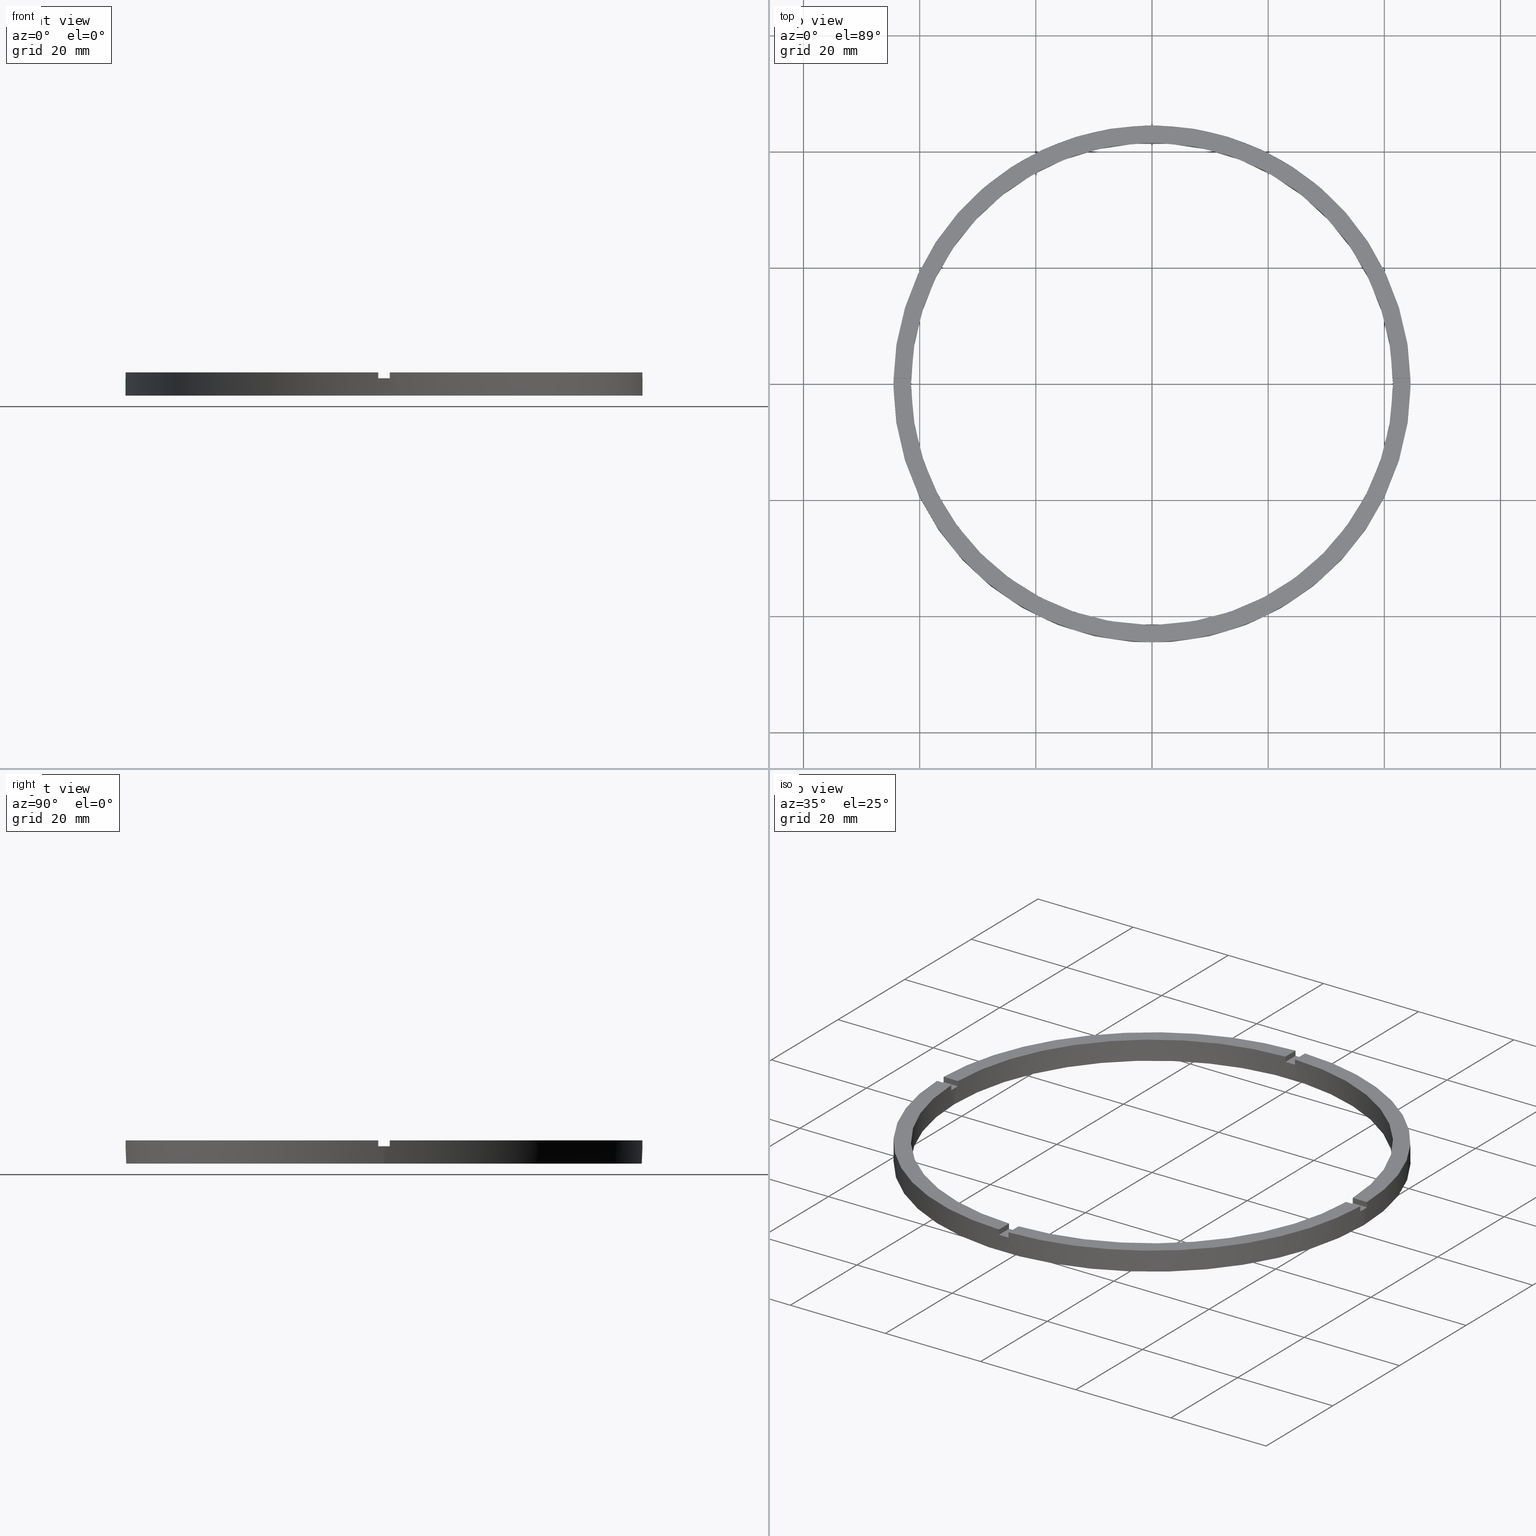
[diagram: canonical four-view strip — front | top / right | iso, engineering-drawing reading convention]
A machine part, canonical four-view strip (front | top / right | iso — engineering-drawing reading convention). The complete STEP part file that produces these views, byte-faithful:
ISO-10303-21;
HEADER;
FILE_DESCRIPTION (( 'STEP AP203' ),
    '1' );
FILE_NAME ('514183.step',
    '2024-12-26T02:45:40',
    ( 'MSI' ),
    ( '' ),
    'SwSTEP 2.0',
    'SolidWorks 2020',
    '' );
FILE_SCHEMA (( 'CONFIG_CONTROL_DESIGN' ));
ENDSEC;

DATA;
#1 = ORIENTED_EDGE ( 'NONE', *, *, #86, .F. ) ;
#2 = VERTEX_POINT ( 'NONE', #333 ) ;
#3 = AXIS2_PLACEMENT_3D ( 'NONE', #325, #637, #387 ) ;
#4 = EDGE_LOOP ( 'NONE', ( #734, #754, #232, #190, #500, #448, #221, #695, #498, #718, #200, #711 ) ) ;
#5 = DIRECTION ( 'NONE',  ( -0.000000000000000000, 0.000000000000000000, 1.000000000000000000 ) ) ;
#6 = VERTEX_POINT ( 'NONE', #376 ) ;
#7 = PERSON_AND_ORGANIZATION ( #82, #570 ) ;
#8 = VERTEX_POINT ( 'NONE', #370 ) ;
#9 = ORIENTED_EDGE ( 'NONE', *, *, #110, .T. ) ;
#10 = DIRECTION ( 'NONE',  ( 1.000000000000000000, 0.000000000000000000, 0.000000000000000000 ) ) ;
#11 = VECTOR ( 'NONE', #665, 1000.000000000000000 ) ;
#12 = DIRECTION ( 'NONE',  ( -1.000000000000000000, 0.000000000000000000, 0.000000000000000000 ) ) ;
#13 = CC_DESIGN_APPROVAL ( #143, ( #174 ) ) ;
#14 = LINE ( 'NONE', #499, #572 ) ;
#15 = AXIS2_PLACEMENT_3D ( 'NONE', #672, #164, #423 ) ;
#16 = LINE ( 'NONE', #613, #22 ) ;
#17 = EDGE_CURVE ( 'NONE', #714, #728, #713, .T. ) ;
#18 =( LENGTH_UNIT ( ) NAMED_UNIT ( * ) SI_UNIT ( .MILLI., .METRE. ) );
#19 = PLANE ( 'NONE',  #429 ) ;
#20 = CIRCLE ( 'NONE', #158, 41.50000000000000000 ) ;
#21 = PERSON_AND_ORGANIZATION ( #82, #570 ) ;
#22 = VECTOR ( 'NONE', #363, 1000.000000000000000 ) ;
#23 = DIRECTION ( 'NONE',  ( 1.000000000000000000, 0.000000000000000000, 0.000000000000000000 ) ) ;
#24 = AXIS2_PLACEMENT_3D ( 'NONE', #703, #419, #237 ) ;
#25 = DIRECTION ( 'NONE',  ( -0.000000000000000000, -0.000000000000000000, -1.000000000000000000 ) ) ;
#26 = CARTESIAN_POINT ( 'NONE',  ( 0.000000000000000000, 0.000000000000000000, 4.000000000000000000 ) ) ;
#27 = CALENDAR_DATE ( 2024, 26, 12 ) ;
#28 = CARTESIAN_POINT ( 'NONE',  ( 0.000000000000000000, 0.000000000000000000, 4.000000000000000000 ) ) ;
#29 = COORDINATED_UNIVERSAL_TIME_OFFSET ( 8, 0, .AHEAD. ) ;
#30 = LINE ( 'NONE', #383, #301 ) ;
#31 = DIRECTION ( 'NONE',  ( 0.000000000000000000, 0.000000000000000000, 1.000000000000000000 ) ) ;
#32 = FACE_BOUND ( 'NONE', #275, .T. ) ;
#33 = MECHANICAL_CONTEXT ( 'NONE', #440, 'mechanical' ) ;
#34 = CIRCLE ( 'NONE', #342, 44.50000000000000711 ) ;
#35 = CYLINDRICAL_SURFACE ( 'NONE', #648, 44.50000000000000711 ) ;
#36 = FACE_OUTER_BOUND ( 'NONE', #475, .T. ) ;
#37 = FACE_OUTER_BOUND ( 'NONE', #193, .T. ) ;
#38 = PERSON_AND_ORGANIZATION ( #82, #570 ) ;
#39 = CARTESIAN_POINT ( 'NONE',  ( 34.49999999999999289, -1.000000000000156763, 3.000000000000000000 ) ) ;
#40 = VECTOR ( 'NONE', #551, 1000.000000000000000 ) ;
#41 = CARTESIAN_POINT ( 'NONE',  ( 0.9999999999998419042, -44.48876262608346366, 4.000000000000000000 ) ) ;
#42 = VECTOR ( 'NONE', #416, 1000.000000000000000 ) ;
#43 = LINE ( 'NONE', #367, #286 ) ;
#44 = VECTOR ( 'NONE', #142, 1000.000000000000000 ) ;
#45 = LINE ( 'NONE', #67, #594 ) ;
#46 = LINE ( 'NONE', #606, #318 ) ;
#47 = AXIS2_PLACEMENT_3D ( 'NONE', #777, #518, #94 ) ;
#48 = LINE ( 'NONE', #198, #354 ) ;
#49 = CARTESIAN_POINT ( 'NONE',  ( 34.49999999999999289, 0.9999999999998432365, 3.000000000000000000 ) ) ;
#50 = CIRCLE ( 'NONE', #779, 44.50000000000000711 ) ;
#51 = CARTESIAN_POINT ( 'NONE',  ( -41.50000000000000000, 0.000000000000000000, 0.000000000000000000 ) ) ;
#52 =( GEOMETRIC_REPRESENTATION_CONTEXT ( 3 ) GLOBAL_UNCERTAINTY_ASSIGNED_CONTEXT ( ( #629 ) ) GLOBAL_UNIT_ASSIGNED_CONTEXT ( ( #18, #132, #433 ) ) REPRESENTATION_CONTEXT ( 'NONE', 'WORKASPACE' ) );
#53 = EDGE_CURVE ( 'NONE', #729, #545, #492, .T. ) ;
#54 = CIRCLE ( 'NONE', #351, 41.50000000000000000 ) ;
#55 = LINE ( 'NONE', #541, #324 ) ;
#56 = CARTESIAN_POINT ( 'NONE',  ( 0.000000000000000000, 0.000000000000000000, 3.000000000000000000 ) ) ;
#57 = LINE ( 'NONE', #501, #584 ) ;
#58 = CARTESIAN_POINT ( 'NONE',  ( -1.000000000000025979, 41.48795005781799716, 4.000000000000000000 ) ) ;
#59 = CARTESIAN_POINT ( 'NONE',  ( 41.48795005781800427, 0.9999999999998436806, 3.000000000000000000 ) ) ;
#60 = CIRCLE ( 'NONE', #562, 41.50000000000000000 ) ;
#61 = FACE_OUTER_BOUND ( 'NONE', #517, .T. ) ;
#62 = CC_DESIGN_APPROVAL ( #350, ( #401 ) ) ;
#63 = VECTOR ( 'NONE', #762, 1000.000000000000000 ) ;
#64 = DIRECTION ( 'NONE',  ( 1.000000000000000000, 1.951563910473907735E-16, 0.000000000000000000 ) ) ;
#65 = CARTESIAN_POINT ( 'NONE',  ( 41.48795005781799006, -1.000000000000156319, 3.000000000000000000 ) ) ;
#66 = EDGE_CURVE ( 'NONE', #484, #265, #706, .T. ) ;
#67 = CARTESIAN_POINT ( 'NONE',  ( 41.48795005781800427, 0.9999999999998436806, 4.000000000000000000 ) ) ;
#68 = LINE ( 'NONE', #522, #331 ) ;
#69 = CIRCLE ( 'NONE', #668, 41.50000000000000000 ) ;
#70 = VECTOR ( 'NONE', #267, 1000.000000000000000 ) ;
#71 = CIRCLE ( 'NONE', #759, 41.50000000000000000 ) ;
#72 = LINE ( 'NONE', #125, #603 ) ;
#73 = AXIS2_PLACEMENT_3D ( 'NONE', #662, #211, #686 ) ;
#74 = CARTESIAN_POINT ( 'NONE',  ( 0.000000000000000000, 0.000000000000000000, 4.000000000000000000 ) ) ;
#75 = ADVANCED_FACE ( 'NONE', ( #453 ), #708, .F. ) ;
#76 = PLANE ( 'NONE',  #657 ) ;
#77 = CARTESIAN_POINT ( 'NONE',  ( 44.50000000000000711, 5.449678256205721981E-15, 0.000000000000000000 ) ) ;
#78 = EDGE_CURVE ( 'NONE', #445, #773, #334, .T. ) ;
#79 = PLANE ( 'NONE',  #407 ) ;
#80 = LINE ( 'NONE', #109, #90 ) ;
#81 = ADVANCED_FACE ( 'NONE', ( #601 ), #134, .T. ) ;
#82 = PERSON ( 'δָ��', 'δָ��', 'δָ��', ('δָ��'), ('δָ��'), ('δָ��') ) ;
#83 = CARTESIAN_POINT ( 'NONE',  ( -44.50000000000000711, 0.000000000000000000, 4.000000000000000000 ) ) ;
#84 = VECTOR ( 'NONE', #297, 1000.000000000000000 ) ;
#85 = PERSON_AND_ORGANIZATION_ROLE ( 'creator' ) ;
#86 = EDGE_CURVE ( 'NONE', #778, #2, #69, .T. ) ;
#87 = CARTESIAN_POINT ( 'NONE',  ( -44.48876262608345655, 0.9999999999999703570, 3.000000000000000000 ) ) ;
#88 = DIRECTION ( 'NONE',  ( -0.000000000000000000, -0.000000000000000000, -1.000000000000000000 ) ) ;
#89 = FACE_OUTER_BOUND ( 'NONE', #698, .T. ) ;
#90 = VECTOR ( 'NONE', #163, 1000.000000000000000 ) ;
#91 = PLANE ( 'NONE',  #744 ) ;
#92 = PERSON_AND_ORGANIZATION_ROLE ( 'classification_officer' ) ;
#93 = DIRECTION ( 'NONE',  ( 1.000000000000000000, -0.000000000000000000, 0.000000000000000000 ) ) ;
#94 = DIRECTION ( 'NONE',  ( 1.000000000000000000, 0.000000000000000000, -0.000000000000000000 ) ) ;
#95 = DIRECTION ( 'NONE',  ( 6.505213034913025371E-17, -1.000000000000000000, 0.000000000000000000 ) ) ;
#96 = CIRCLE ( 'NONE', #677, 44.50000000000000711 ) ;
#97 = AXIS2_PLACEMENT_3D ( 'NONE', #782, #608, #64 ) ;
#98 = DIRECTION ( 'NONE',  ( -1.000000000000000000, -6.505213034913025371E-17, -0.000000000000000000 ) ) ;
#99 = LINE ( 'NONE', #215, #122 ) ;
#100 = EDGE_CURVE ( 'NONE', #223, #773, #335, .T. ) ;
#101 = CARTESIAN_POINT ( 'NONE',  ( 0.000000000000000000, 0.000000000000000000, 4.000000000000000000 ) ) ;
#102 = DIRECTION ( 'NONE',  ( 0.000000000000000000, 0.000000000000000000, 1.000000000000000000 ) ) ;
#103 = DIRECTION ( 'NONE',  ( 0.000000000000000000, 0.000000000000000000, 1.000000000000000000 ) ) ;
#104 = EDGE_CURVE ( 'NONE', #458, #230, #72, .T. ) ;
#105 = AXIS2_PLACEMENT_3D ( 'NONE', #740, #432, #12 ) ;
#106 = DIRECTION ( 'NONE',  ( 0.000000000000000000, 0.000000000000000000, 1.000000000000000000 ) ) ;
#107 = EDGE_CURVE ( 'NONE', #728, #223, #339, .T. ) ;
#108 = DIRECTION ( 'NONE',  ( 0.000000000000000000, 0.000000000000000000, 1.000000000000000000 ) ) ;
#109 = CARTESIAN_POINT ( 'NONE',  ( 44.48876262608346366, 0.9999999999998439026, 4.000000000000000000 ) ) ;
#110 = EDGE_CURVE ( 'NONE', #743, #279, #598, .T. ) ;
#111 = CALENDAR_DATE ( 2024, 26, 12 ) ;
#112 = LOCAL_TIME ( 10, 45, 40.00000000000000000, #394 ) ;
#113 = DATE_AND_TIME ( #111, #391 ) ;
#114 = ADVANCED_FACE ( 'NONE', ( #600 ), #509, .T. ) ;
#115 = APPROVAL_DATE_TIME ( #660, #350 ) ;
#116 = DIRECTION ( 'NONE',  ( -0.000000000000000000, -0.000000000000000000, -1.000000000000000000 ) ) ;
#117 = SECURITY_CLASSIFICATION_LEVEL ( 'unclassified' ) ;
#118 = CARTESIAN_POINT ( 'NONE',  ( 0.9999999999999740208, 41.48795005781799716, 3.000000000000000000 ) ) ;
#119 = EDGE_CURVE ( 'NONE', #463, #195, #71, .T. ) ;
#120 = CIRCLE ( 'NONE', #253, 44.50000000000000711 ) ;
#121 = PERSON_AND_ORGANIZATION ( #82, #570 ) ;
#122 = VECTOR ( 'NONE', #538, 1000.000000000000000 ) ;
#123 = CALENDAR_DATE ( 2024, 26, 12 ) ;
#124 = ADVANCED_FACE ( 'NONE', ( #338 ), #525, .F. ) ;
#125 = CARTESIAN_POINT ( 'NONE',  ( 0.9999999999999740208, 41.48795005781799716, 4.000000000000000000 ) ) ;
#126 = CARTESIAN_POINT ( 'NONE',  ( -1.000000000000158540, -41.48795005781799006, 3.000000000000000000 ) ) ;
#127 = DATE_AND_TIME ( #123, #112 ) ;
#128 = AXIS2_PLACEMENT_3D ( 'NONE', #403, #659, #620 ) ;
#129 = FACE_OUTER_BOUND ( 'NONE', #550, .T. ) ;
#130 = EDGE_CURVE ( 'NONE', #714, #202, #54, .T. ) ;
#131 = COORDINATED_UNIVERSAL_TIME_OFFSET ( 8, 0, .AHEAD. ) ;
#132 =( NAMED_UNIT ( * ) PLANE_ANGLE_UNIT ( ) SI_UNIT ( $, .RADIAN. ) );
#133 = PERSON_AND_ORGANIZATION ( #82, #570 ) ;
#134 = PLANE ( 'NONE',  #220 ) ;
#135 = CARTESIAN_POINT ( 'NONE',  ( 34.49999999999999289, -1.000000000000156763, 3.000000000000000000 ) ) ;
#136 = EDGE_CURVE ( 'NONE', #240, #534, #580, .T. ) ;
#137 = CC_DESIGN_APPROVAL ( #268, ( #373 ) ) ;
#138 = EDGE_CURVE ( 'NONE', #195, #508, #582, .T. ) ;
#139 = DIRECTION ( 'NONE',  ( 0.000000000000000000, 0.000000000000000000, 1.000000000000000000 ) ) ;
#140 = CARTESIAN_POINT ( 'NONE',  ( 0.000000000000000000, 0.000000000000000000, 3.000000000000000000 ) ) ;
#141 = FACE_OUTER_BOUND ( 'NONE', #255, .T. ) ;
#142 = DIRECTION ( 'NONE',  ( -0.000000000000000000, -0.000000000000000000, -1.000000000000000000 ) ) ;
#143 = APPROVAL ( #199, 'δָ��' ) ;
#144 = DIRECTION ( 'NONE',  ( 0.000000000000000000, 0.000000000000000000, 1.000000000000000000 ) ) ;
#145 = EDGE_CURVE ( 'NONE', #545, #2, #30, .T. ) ;
#146 = PERSON_AND_ORGANIZATION ( #82, #570 ) ;
#147 = DIRECTION ( 'NONE',  ( 1.000000000000000000, 0.000000000000000000, 0.000000000000000000 ) ) ;
#148 = PLANE ( 'NONE',  #299 ) ;
#149 = LINE ( 'NONE', #519, #400 ) ;
#150 = AXIS2_PLACEMENT_3D ( 'NONE', #49, #151, #226 ) ;
#151 = DIRECTION ( 'NONE',  ( -6.505213034913025371E-17, 1.000000000000000000, 0.000000000000000000 ) ) ;
#152 = CARTESIAN_POINT ( 'NONE',  ( -1.000000000000158540, -41.48795005781799006, 4.000000000000000000 ) ) ;
#153 = MANIFOLD_SOLID_BREP ( '�г�-����1', #247 ) ;
#154 = CARTESIAN_POINT ( 'NONE',  ( -41.50000000000000000, 0.000000000000000000, 4.000000000000000000 ) ) ;
#155 = CIRCLE ( 'NONE', #513, 44.50000000000000711 ) ;
#156 = DIRECTION ( 'NONE',  ( 0.000000000000000000, 0.000000000000000000, 1.000000000000000000 ) ) ;
#157 = LINE ( 'NONE', #135, #421 ) ;
#158 = AXIS2_PLACEMENT_3D ( 'NONE', #56, #103, #687 ) ;
#159 = DIRECTION ( 'NONE',  ( 1.000000000000000000, 0.000000000000000000, 0.000000000000000000 ) ) ;
#160 = ADVANCED_FACE ( 'NONE', ( #36, #32 ), #364, .F. ) ;
#161 = EDGE_CURVE ( 'NONE', #187, #240, #34, .T. ) ;
#162 = DIRECTION ( 'NONE',  ( 0.000000000000000000, 0.000000000000000000, 1.000000000000000000 ) ) ;
#163 = DIRECTION ( 'NONE',  ( -0.000000000000000000, -0.000000000000000000, -1.000000000000000000 ) ) ;
#164 = DIRECTION ( 'NONE',  ( 0.000000000000000000, 0.000000000000000000, 1.000000000000000000 ) ) ;
#165 = EDGE_CURVE ( 'NONE', #714, #277, #314, .T. ) ;
#166 = AXIS2_PLACEMENT_3D ( 'NONE', #28, #523, #355 ) ;
#167 = EDGE_CURVE ( 'NONE', #176, #534, #45, .T. ) ;
#168 = EDGE_CURVE ( 'NONE', #778, #265, #326, .T. ) ;
#169 = ADVANCED_FACE ( 'NONE', ( #37 ), #555, .T. ) ;
#170 = DIRECTION ( 'NONE',  ( -1.000000000000000000, -1.951563910473907735E-16, 0.000000000000000000 ) ) ;
#171 = APPLICATION_PROTOCOL_DEFINITION ( 'international standard', 'config_control_design', 1994, #440 ) ;
#172 = ORIENTED_EDGE ( 'NONE', *, *, #649, .F. ) ;
#173 = ORIENTED_EDGE ( 'NONE', *, *, #130, .F. ) ;
#174 = SECURITY_CLASSIFICATION ( '', '', #117 ) ;
#175 = ORIENTED_EDGE ( 'NONE', *, *, #269, .T. ) ;
#176 = VERTEX_POINT ( 'NONE', #652 ) ;
#177 = ADVANCED_FACE ( 'NONE', ( #577 ), #148, .T. ) ;
#178 = APPROVAL_ROLE ( '' ) ;
#179 = ORIENTED_EDGE ( 'NONE', *, *, #464, .T. ) ;
#180 = ORIENTED_EDGE ( 'NONE', *, *, #669, .F. ) ;
#181 = ORIENTED_EDGE ( 'NONE', *, *, #749, .F. ) ;
#182 = CARTESIAN_POINT ( 'NONE',  ( 0.000000000000000000, 0.000000000000000000, 4.000000000000000000 ) ) ;
#183 = ORIENTED_EDGE ( 'NONE', *, *, #638, .T. ) ;
#184 = ORIENTED_EDGE ( 'NONE', *, *, #649, .T. ) ;
#185 = DIRECTION ( 'NONE',  ( -1.000000000000000000, -1.951563910473907735E-16, 0.000000000000000000 ) ) ;
#186 = ORIENTED_EDGE ( 'NONE', *, *, #685, .T. ) ;
#187 = VERTEX_POINT ( 'NONE', #352 ) ;
#188 = ORIENTED_EDGE ( 'NONE', *, *, #100, .T. ) ;
#189 = ORIENTED_EDGE ( 'NONE', *, *, #136, .T. ) ;
#190 = ORIENTED_EDGE ( 'NONE', *, *, #100, .F. ) ;
#191 = ORIENTED_EDGE ( 'NONE', *, *, #119, .F. ) ;
#192 = DIRECTION ( 'NONE',  ( 1.000000000000000000, 6.505213034913025371E-17, 0.000000000000000000 ) ) ;
#193 = EDGE_LOOP ( 'NONE', ( #234, #191, #479, #244 ) ) ;
#194 = ORIENTED_EDGE ( 'NONE', *, *, #252, .F. ) ;
#195 = VERTEX_POINT ( 'NONE', #208 ) ;
#196 = DIRECTION ( 'NONE',  ( 1.000000000000000000, 0.000000000000000000, -0.000000000000000000 ) ) ;
#197 = ORIENTED_EDGE ( 'NONE', *, *, #392, .F. ) ;
#198 = CARTESIAN_POINT ( 'NONE',  ( -1.000000000000159428, -34.50000000000018474, 4.000000000000000000 ) ) ;
#199 = APPROVAL_STATUS ( 'not_yet_approved' ) ;
#200 = ORIENTED_EDGE ( 'NONE', *, *, #289, .F. ) ;
#201 = AXIS2_PLACEMENT_3D ( 'NONE', #101, #461, #357 ) ;
#202 = VERTEX_POINT ( 'NONE', #293 ) ;
#203 = EDGE_CURVE ( 'NONE', #212, #508, #46, .T. ) ;
#204 = ORIENTED_EDGE ( 'NONE', *, *, #669, .T. ) ;
#205 = ORIENTED_EDGE ( 'NONE', *, *, #464, .F. ) ;
#206 = DIRECTION ( 'NONE',  ( 1.000000000000000000, 0.000000000000000000, 0.000000000000000000 ) ) ;
#207 = VERTEX_POINT ( 'NONE', #688 ) ;
#208 = CARTESIAN_POINT ( 'NONE',  ( 41.48795005781799006, -1.000000000000156319, 4.000000000000000000 ) ) ;
#209 = ORIENTED_EDGE ( 'NONE', *, *, #104, .T. ) ;
#210 = ORIENTED_EDGE ( 'NONE', *, *, #203, .F. ) ;
#211 = DIRECTION ( 'NONE',  ( 0.000000000000000000, 0.000000000000000000, 1.000000000000000000 ) ) ;
#212 = VERTEX_POINT ( 'NONE', #645 ) ;
#213 = ORIENTED_EDGE ( 'NONE', *, *, #53, .F. ) ;
#214 = ORIENTED_EDGE ( 'NONE', *, *, #86, .T. ) ;
#215 = CARTESIAN_POINT ( 'NONE',  ( -44.48876262608345655, 0.9999999999999703570, 4.000000000000000000 ) ) ;
#216 = ORIENTED_EDGE ( 'NONE', *, *, #694, .T. ) ;
#217 = ORIENTED_EDGE ( 'NONE', *, *, #503, .T. ) ;
#218 = CARTESIAN_POINT ( 'NONE',  ( 0.9999999999999740208, 41.48795005781799716, 4.000000000000000000 ) ) ;
#219 = ORIENTED_EDGE ( 'NONE', *, *, #478, .F. ) ;
#220 = AXIS2_PLACEMENT_3D ( 'NONE', #182, #438, #569 ) ;
#221 = ORIENTED_EDGE ( 'NONE', *, *, #312, .F. ) ;
#222 = CARTESIAN_POINT ( 'NONE',  ( 0.000000000000000000, 0.000000000000000000, 4.000000000000000000 ) ) ;
#223 = VERTEX_POINT ( 'NONE', #587 ) ;
#224 = ORIENTED_EDGE ( 'NONE', *, *, #514, .T. ) ;
#225 = ORIENTED_EDGE ( 'NONE', *, *, #679, .F. ) ;
#226 = DIRECTION ( 'NONE',  ( -1.000000000000000000, -6.505213034913025371E-17, 0.000000000000000000 ) ) ;
#227 = CARTESIAN_POINT ( 'NONE',  ( -1.000000000000159428, -34.50000000000018474, 3.000000000000000000 ) ) ;
#228 = VERTEX_POINT ( 'NONE', #51 ) ;
#229 = ORIENTED_EDGE ( 'NONE', *, *, #441, .T. ) ;
#230 = VERTEX_POINT ( 'NONE', #218 ) ;
#231 = ORIENTED_EDGE ( 'NONE', *, *, #396, .F. ) ;
#232 = ORIENTED_EDGE ( 'NONE', *, *, #78, .T. ) ;
#233 = VERTEX_POINT ( 'NONE', #284 ) ;
#234 = ORIENTED_EDGE ( 'NONE', *, *, #138, .F. ) ;
#235 = ORIENTED_EDGE ( 'NONE', *, *, #514, .F. ) ;
#236 = ORIENTED_EDGE ( 'NONE', *, *, #710, .F. ) ;
#237 = DIRECTION ( 'NONE',  ( 1.000000000000000000, 0.000000000000000000, 0.000000000000000000 ) ) ;
#238 = ADVANCED_FACE ( 'NONE', ( #583 ), #91, .T. ) ;
#239 = ORIENTED_EDGE ( 'NONE', *, *, #130, .T. ) ;
#240 = VERTEX_POINT ( 'NONE', #746 ) ;
#241 = AXIS2_PLACEMENT_3D ( 'NONE', #444, #530, #756 ) ;
#242 = DIRECTION ( 'NONE',  ( -0.000000000000000000, -0.000000000000000000, -1.000000000000000000 ) ) ;
#243 = ORIENTED_EDGE ( 'NONE', *, *, #53, .T. ) ;
#244 = ORIENTED_EDGE ( 'NONE', *, *, #353, .T. ) ;
#245 = ORIENTED_EDGE ( 'NONE', *, *, #252, .T. ) ;
#246 = CARTESIAN_POINT ( 'NONE',  ( 0.000000000000000000, 0.000000000000000000, 4.000000000000000000 ) ) ;
#247 = CLOSED_SHELL ( 'NONE', ( #75, #506, #722, #177, #169, #81, #160, #636, #658, #302, #774, #238, #481, #332, #428, #566, #625, #114, #619, #124, #783 ) ) ;
#248 = ORIENTED_EDGE ( 'NONE', *, *, #503, .F. ) ;
#249 = PLANE ( 'NONE',  #393 ) ;
#250 = ORIENTED_EDGE ( 'NONE', *, *, #136, .F. ) ;
#251 = DIRECTION ( 'NONE',  ( 0.000000000000000000, 0.000000000000000000, 1.000000000000000000 ) ) ;
#252 = EDGE_CURVE ( 'NONE', #265, #702, #48, .T. ) ;
#253 = AXIS2_PLACEMENT_3D ( 'NONE', #74, #604, #147 ) ;
#254 = ORIENTED_EDGE ( 'NONE', *, *, #304, .T. ) ;
#255 = EDGE_LOOP ( 'NONE', ( #456, #771, #512, #539 ) ) ;
#256 = CARTESIAN_POINT ( 'NONE',  ( 0.000000000000000000, 0.000000000000000000, 3.000000000000000000 ) ) ;
#257 = CARTESIAN_POINT ( 'NONE',  ( 0.000000000000000000, 0.000000000000000000, 4.000000000000000000 ) ) ;
#258 = VERTEX_POINT ( 'NONE', #540 ) ;
#259 = EDGE_CURVE ( 'NONE', #533, #536, #617, .T. ) ;
#260 = ORIENTED_EDGE ( 'NONE', *, *, #710, .T. ) ;
#261 = ORIENTED_EDGE ( 'NONE', *, *, #104, .F. ) ;
#262 = DIRECTION ( 'NONE',  ( 1.000000000000000000, 0.000000000000000000, 0.000000000000000000 ) ) ;
#263 = ORIENTED_EDGE ( 'NONE', *, *, #168, .T. ) ;
#264 = APPROVAL_ROLE ( '' ) ;
#265 = VERTEX_POINT ( 'NONE', #152 ) ;
#266 = ORIENTED_EDGE ( 'NONE', *, *, #402, .T. ) ;
#267 = DIRECTION ( 'NONE',  ( -0.000000000000000000, -0.000000000000000000, -1.000000000000000000 ) ) ;
#268 = APPROVAL ( #747, 'δָ��' ) ;
#269 = EDGE_CURVE ( 'NONE', #778, #729, #626, .T. ) ;
#270 = ORIENTED_EDGE ( 'NONE', *, *, #165, .F. ) ;
#271 = ORIENTED_EDGE ( 'NONE', *, *, #694, .F. ) ;
#272 = EDGE_LOOP ( 'NONE', ( #769, #750, #521, #248, #173, #768 ) ) ;
#273 = DIRECTION ( 'NONE',  ( 1.000000000000000000, 6.505213034913025371E-17, 0.000000000000000000 ) ) ;
#274 = DIRECTION ( 'NONE',  ( -1.000000000000000000, -6.505213034913025371E-17, -0.000000000000000000 ) ) ;
#275 = EDGE_LOOP ( 'NONE', ( #547, #254 ) ) ;
#276 = DIRECTION ( 'NONE',  ( 0.000000000000000000, 0.000000000000000000, 1.000000000000000000 ) ) ;
#277 = VERTEX_POINT ( 'NONE', #361 ) ;
#278 = VERTEX_POINT ( 'NONE', #412 ) ;
#279 = VERTEX_POINT ( 'NONE', #548 ) ;
#280 = CARTESIAN_POINT ( 'NONE',  ( -44.50000000000000711, 0.000000000000000000, 0.000000000000000000 ) ) ;
#281 = ORIENTED_EDGE ( 'NONE', *, *, #725, .F. ) ;
#282 = LOCAL_TIME ( 10, 45, 40.00000000000000000, #29 ) ;
#283 = FACE_OUTER_BOUND ( 'NONE', #446, .T. ) ;
#284 = CARTESIAN_POINT ( 'NONE',  ( -1.000000000000025979, 44.48876262608345655, 4.000000000000000000 ) ) ;
#285 = ADVANCED_BREP_SHAPE_REPRESENTATION ( '514183', ( #153, #3 ), #52 ) ;
#286 = VECTOR ( 'NONE', #404, 1000.000000000000000 ) ;
#287 = AXIS2_PLACEMENT_3D ( 'NONE', #609, #689, #295 ) ;
#288 = DIRECTION ( 'NONE',  ( 1.000000000000000000, 0.000000000000000000, 0.000000000000000000 ) ) ;
#289 = EDGE_CURVE ( 'NONE', #6, #536, #622, .T. ) ;
#290 = CARTESIAN_POINT ( 'NONE',  ( 0.000000000000000000, 0.000000000000000000, 4.000000000000000000 ) ) ;
#291 = CARTESIAN_POINT ( 'NONE',  ( 0.000000000000000000, 0.000000000000000000, 4.000000000000000000 ) ) ;
#292 = DATE_AND_TIME ( #27, #282 ) ;
#293 = CARTESIAN_POINT ( 'NONE',  ( -41.50000000000000000, 0.000000000000000000, 3.000000000000000000 ) ) ;
#294 = DIRECTION ( 'NONE',  ( -1.000000000000000000, 0.000000000000000000, 0.000000000000000000 ) ) ;
#295 = DIRECTION ( 'NONE',  ( 1.000000000000000000, 0.000000000000000000, 0.000000000000000000 ) ) ;
#296 = CARTESIAN_POINT ( 'NONE',  ( 0.000000000000000000, 0.000000000000000000, 3.000000000000000000 ) ) ;
#297 = DIRECTION ( 'NONE',  ( 1.301042606982605074E-16, -1.000000000000000000, 0.000000000000000000 ) ) ;
#298 = CIRCLE ( 'NONE', #365, 41.50000000000000000 ) ;
#299 = AXIS2_PLACEMENT_3D ( 'NONE', #343, #647, #385 ) ;
#300 = CARTESIAN_POINT ( 'NONE',  ( 0.9999999999998414602, -41.48795005781800427, 4.000000000000000000 ) ) ;
#301 = VECTOR ( 'NONE', #369, 1000.000000000000000 ) ;
#302 = ADVANCED_FACE ( 'NONE', ( #623 ), #415, .F. ) ;
#303 = VECTOR ( 'NONE', #457, 1000.000000000000000 ) ;
#304 = EDGE_CURVE ( 'NONE', #279, #228, #627, .T. ) ;
#305 = DIRECTION ( 'NONE',  ( 1.000000000000000000, 0.000000000000000000, 0.000000000000000000 ) ) ;
#306 = DIRECTION ( 'NONE',  ( -0.000000000000000000, -0.000000000000000000, -1.000000000000000000 ) ) ;
#307 = DIRECTION ( 'NONE',  ( 1.000000000000000000, 0.000000000000000000, 0.000000000000000000 ) ) ;
#308 = FACE_OUTER_BOUND ( 'NONE', #4, .T. ) ;
#309 = CC_DESIGN_SECURITY_CLASSIFICATION ( #174, ( #401 ) ) ;
#310 = CARTESIAN_POINT ( 'NONE',  ( -41.48795005781799716, 0.9999999999999709122, 4.000000000000000000 ) ) ;
#311 = AXIS2_PLACEMENT_3D ( 'NONE', #323, #676, #10 ) ;
#312 = EDGE_CURVE ( 'NONE', #233, #482, #610, .T. ) ;
#313 = FACE_OUTER_BOUND ( 'NONE', #526, .T. ) ;
#314 = LINE ( 'NONE', #310, #322 ) ;
#315 = FACE_OUTER_BOUND ( 'NONE', #450, .T. ) ;
#316 = CARTESIAN_POINT ( 'NONE',  ( 0.000000000000000000, 0.000000000000000000, 4.000000000000000000 ) ) ;
#317 = FACE_OUTER_BOUND ( 'NONE', #752, .T. ) ;
#318 = VECTOR ( 'NONE', #767, 1000.000000000000000 ) ;
#319 = CYLINDRICAL_SURFACE ( 'NONE', #105, 41.50000000000000000 ) ;
#320 = DIRECTION ( 'NONE',  ( -0.000000000000000000, 0.000000000000000000, 1.000000000000000000 ) ) ;
#321 = VECTOR ( 'NONE', #98, 1000.000000000000000 ) ;
#322 = VECTOR ( 'NONE', #108, 1000.000000000000000 ) ;
#323 = CARTESIAN_POINT ( 'NONE',  ( 0.000000000000000000, 0.000000000000000000, 3.000000000000000000 ) ) ;
#324 = VECTOR ( 'NONE', #699, 1000.000000000000000 ) ;
#325 = CARTESIAN_POINT ( 'NONE',  ( 0.000000000000000000, 0.000000000000000000, 0.000000000000000000 ) ) ;
#326 = LINE ( 'NONE', #480, #571 ) ;
#327 = VECTOR ( 'NONE', #341, 1000.000000000000000 ) ;
#328 = DESIGN_CONTEXT ( 'detailed design', #588, 'design' ) ;
#329 = DIRECTION ( 'NONE',  ( -1.000000000000000000, 0.000000000000000000, 0.000000000000000000 ) ) ;
#330 = LINE ( 'NONE', #735, #327 ) ;
#331 = VECTOR ( 'NONE', #590, 1000.000000000000000 ) ;
#332 = ADVANCED_FACE ( 'NONE', ( #89 ), #366, .F. ) ;
#333 = CARTESIAN_POINT ( 'NONE',  ( 0.9999999999998414602, -41.48795005781800427, 3.000000000000000000 ) ) ;
#334 = CIRCLE ( 'NONE', #628, 44.50000000000000711 ) ;
#335 = LINE ( 'NONE', #83, #337 ) ;
#336 = EDGE_CURVE ( 'NONE', #6, #240, #80, .T. ) ;
#337 = VECTOR ( 'NONE', #116, 1000.000000000000000 ) ;
#338 = FACE_OUTER_BOUND ( 'NONE', #454, .T. ) ;
#339 = CIRCLE ( 'NONE', #311, 44.50000000000000711 ) ;
#340 = APPLICATION_PROTOCOL_DEFINITION ( 'international standard', 'config_control_design', 1994, #588 ) ;
#341 = DIRECTION ( 'NONE',  ( 1.000000000000000000, 1.951563910473907735E-16, -0.000000000000000000 ) ) ;
#342 = AXIS2_PLACEMENT_3D ( 'NONE', #621, #697, #159 ) ;
#343 = CARTESIAN_POINT ( 'NONE',  ( 0.000000000000000000, 0.000000000000000000, 4.000000000000000000 ) ) ;
#344 = DIRECTION ( 'NONE',  ( 1.000000000000000000, 0.000000000000000000, -0.000000000000000000 ) ) ;
#345 = VECTOR ( 'NONE', #102, 1000.000000000000000 ) ;
#346 = PLANE ( 'NONE',  #241 ) ;
#347 = CARTESIAN_POINT ( 'NONE',  ( -1.000000000000025979, 44.48876262608345655, 3.000000000000000000 ) ) ;
#348 = DIRECTION ( 'NONE',  ( 0.000000000000000000, 0.000000000000000000, 1.000000000000000000 ) ) ;
#349 = CARTESIAN_POINT ( 'NONE',  ( -34.50000000000019185, 0.9999999999999722444, 3.000000000000000000 ) ) ;
#350 = APPROVAL ( #683, 'δָ��' ) ;
#351 = AXIS2_PLACEMENT_3D ( 'NONE', #447, #597, #650 ) ;
#352 = CARTESIAN_POINT ( 'NONE',  ( 44.50000000000000711, 5.449678256205721981E-15, 3.000000000000000000 ) ) ;
#353 = EDGE_CURVE ( 'NONE', #515, #508, #633, .T. ) ;
#354 = VECTOR ( 'NONE', #535, 1000.000000000000000 ) ;
#356 = CARTESIAN_POINT ( 'NONE',  ( -41.48795005781799716, -1.000000000000029088, 4.000000000000000000 ) ) ;
#355 = DIRECTION ( 'NONE',  ( 1.000000000000000000, 0.000000000000000000, -0.000000000000000000 ) ) ;
#357 = DIRECTION ( 'NONE',  ( 1.000000000000000000, 0.000000000000000000, 0.000000000000000000 ) ) ;
#358 = DIRECTION ( 'NONE',  ( 1.000000000000000000, 0.000000000000000000, 0.000000000000000000 ) ) ;
#359 = CARTESIAN_POINT ( 'NONE',  ( 44.48876262608345655, -1.000000000000156097, 4.000000000000000000 ) ) ;
#360 = CARTESIAN_POINT ( 'NONE',  ( 0.9999999999999740208, 34.50000000000000000, 4.000000000000000000 ) ) ;
#361 = CARTESIAN_POINT ( 'NONE',  ( -41.48795005781799716, 0.9999999999999709122, 4.000000000000000000 ) ) ;
#362 = DIRECTION ( 'NONE',  ( 1.000000000000000000, 0.000000000000000000, 0.000000000000000000 ) ) ;
#363 = DIRECTION ( 'NONE',  ( -0.000000000000000000, -1.000000000000000000, -0.000000000000000000 ) ) ;
#364 = PLANE ( 'NONE',  #372 ) ;
#365 = AXIS2_PLACEMENT_3D ( 'NONE', #257, #144, #288 ) ;
#366 = PLANE ( 'NONE',  #128 ) ;
#367 = CARTESIAN_POINT ( 'NONE',  ( -34.50000000000019185, 0.9999999999999722444, 4.000000000000000000 ) ) ;
#368 = VECTOR ( 'NONE', #560, 1000.000000000000000 ) ;
#369 = DIRECTION ( 'NONE',  ( -1.301042606982605074E-16, 1.000000000000000000, -0.000000000000000000 ) ) ;
#370 = CARTESIAN_POINT ( 'NONE',  ( -44.48876262608345655, -1.000000000000029754, 3.000000000000000000 ) ) ;
#371 = CARTESIAN_POINT ( 'NONE',  ( -41.48795005781799716, -1.000000000000029088, 4.000000000000000000 ) ) ;
#372 = AXIS2_PLACEMENT_3D ( 'NONE', #616, #418, #667 ) ;
#373 = PRODUCT_DEFINITION ( 'δ֪', '', #401, #328 ) ;
#374 = EDGE_CURVE ( 'NONE', #233, #701, #611, .T. ) ;
#375 = EDGE_CURVE ( 'NONE', #230, #536, #389, .T. ) ;
#376 = CARTESIAN_POINT ( 'NONE',  ( 44.48876262608346366, 0.9999999999998439026, 4.000000000000000000 ) ) ;
#377 = VECTOR ( 'NONE', #242, 1000.000000000000000 ) ;
#378 = CARTESIAN_POINT ( 'NONE',  ( 0.000000000000000000, 0.000000000000000000, 3.000000000000000000 ) ) ;
#379 = AXIS2_PLACEMENT_3D ( 'NONE', #290, #553, #305 ) ;
#380 = PERSON_AND_ORGANIZATION_ROLE ( 'design_supplier' ) ;
#381 = APPROVAL_PERSON_ORGANIZATION ( #146, #350, #264 ) ;
#382 = PRODUCT ( '514183', '514183', '', ( #33 ) ) ;
#383 = CARTESIAN_POINT ( 'NONE',  ( 0.9999999999998406830, -34.50000000000018474, 3.000000000000000000 ) ) ;
#384 = CALENDAR_DATE ( 2024, 26, 12 ) ;
#385 = DIRECTION ( 'NONE',  ( 1.000000000000000000, 0.000000000000000000, -0.000000000000000000 ) ) ;
#386 = VECTOR ( 'NONE', #486, 1000.000000000000000 ) ;
#387 = DIRECTION ( 'NONE',  ( 1.000000000000000000, 0.000000000000000000, 0.000000000000000000 ) ) ;
#388 = CARTESIAN_POINT ( 'NONE',  ( -1.000000000000158096, -44.48876262608345655, 4.000000000000000000 ) ) ;
#389 = LINE ( 'NONE', #360, #368 ) ;
#390 = PLANE ( 'NONE',  #166 ) ;
#391 = LOCAL_TIME ( 10, 45, 40.00000000000000000, #559 ) ;
#392 = EDGE_CURVE ( 'NONE', #207, #278, #634, .T. ) ;
#393 = AXIS2_PLACEMENT_3D ( 'NONE', #568, #320, #427 ) ;
#394 = COORDINATED_UNIVERSAL_TIME_OFFSET ( 8, 0, .AHEAD. ) ;
#395 = FACE_OUTER_BOUND ( 'NONE', #472, .T. ) ;
#396 = EDGE_CURVE ( 'NONE', #176, #230, #642, .T. ) ;
#397 = SHAPE_DEFINITION_REPRESENTATION ( #431, #285 ) ;
#398 = DIRECTION ( 'NONE',  ( 0.000000000000000000, 0.000000000000000000, -1.000000000000000000 ) ) ;
#399 = CARTESIAN_POINT ( 'NONE',  ( -34.50000000000019185, -1.000000000000027756, 3.000000000000000000 ) ) ;
#400 = VECTOR ( 'NONE', #25, 1000.000000000000000 ) ;
#401 = PRODUCT_DEFINITION_FORMATION_WITH_SPECIFIED_SOURCE ( '�κ�', '', #382, .NOT_KNOWN. ) ;
#402 = EDGE_CURVE ( 'NONE', #484, #469, #651, .T. ) ;
#403 = CARTESIAN_POINT ( 'NONE',  ( -1.000000000000159428, -34.50000000000018474, 3.000000000000000000 ) ) ;
#404 = DIRECTION ( 'NONE',  ( -1.000000000000000000, -1.951563910473907735E-16, 0.000000000000000000 ) ) ;
#405 = CARTESIAN_POINT ( 'NONE',  ( 34.49999999999999289, -1.000000000000156763, 4.000000000000000000 ) ) ;
#406 = COORDINATED_UNIVERSAL_TIME_OFFSET ( 8, 0, .AHEAD. ) ;
#407 = AXIS2_PLACEMENT_3D ( 'NONE', #349, #640, #185 ) ;
#408 = EDGE_CURVE ( 'NONE', #223, #8, #96, .T. ) ;
#409 = CARTESIAN_POINT ( 'NONE',  ( 41.48795005781799006, -1.000000000000156319, 4.000000000000000000 ) ) ;
#410 = PERSON_AND_ORGANIZATION ( #82, #570 ) ;
#411 = CALENDAR_DATE ( 2024, 26, 12 ) ;
#412 = CARTESIAN_POINT ( 'NONE',  ( -1.000000000000025979, 41.48795005781799716, 3.000000000000000000 ) ) ;
#413 = PLANE ( 'NONE',  #733 ) ;
#414 = LOCAL_TIME ( 10, 45, 40.00000000000000000, #406 ) ;
#415 = PLANE ( 'NONE',  #97 ) ;
#416 = DIRECTION ( 'NONE',  ( -0.000000000000000000, -1.000000000000000000, -0.000000000000000000 ) ) ;
#417 = EDGE_CURVE ( 'NONE', #258, #702, #120, .T. ) ;
#418 = DIRECTION ( 'NONE',  ( 0.000000000000000000, 0.000000000000000000, 1.000000000000000000 ) ) ;
#419 = DIRECTION ( 'NONE',  ( 0.000000000000000000, 0.000000000000000000, 1.000000000000000000 ) ) ;
#420 = CARTESIAN_POINT ( 'NONE',  ( 0.000000000000000000, 0.000000000000000000, 3.000000000000000000 ) ) ;
#421 = VECTOR ( 'NONE', #192, 1000.000000000000000 ) ;
#422 = DIRECTION ( 'NONE',  ( 0.000000000000000000, 0.000000000000000000, 1.000000000000000000 ) ) ;
#423 = DIRECTION ( 'NONE',  ( 1.000000000000000000, 0.000000000000000000, 0.000000000000000000 ) ) ;
#424 = EDGE_CURVE ( 'NONE', #728, #482, #99, .T. ) ;
#425 = DIRECTION ( 'NONE',  ( -0.000000000000000000, -0.000000000000000000, -1.000000000000000000 ) ) ;
#426 = DIRECTION ( 'NONE',  ( -0.000000000000000000, 0.000000000000000000, 1.000000000000000000 ) ) ;
#427 = DIRECTION ( 'NONE',  ( 1.000000000000000000, 0.000000000000000000, 0.000000000000000000 ) ) ;
#428 = ADVANCED_FACE ( 'NONE', ( #395 ), #249, .T. ) ;
#429 = AXIS2_PLACEMENT_3D ( 'NONE', #39, #95, #585 ) ;
#430 = VECTOR ( 'NONE', #274, 1000.000000000000000 ) ;
#431 = PRODUCT_DEFINITION_SHAPE ( 'NONE', 'NONE',  #373 ) ;
#432 = DIRECTION ( 'NONE',  ( -0.000000000000000000, -0.000000000000000000, -1.000000000000000000 ) ) ;
#433 =( NAMED_UNIT ( * ) SI_UNIT ( $, .STERADIAN. ) SOLID_ANGLE_UNIT ( ) );
#434 = DIRECTION ( 'NONE',  ( -1.000000000000000000, 0.000000000000000000, 0.000000000000000000 ) ) ;
#435 = CARTESIAN_POINT ( 'NONE',  ( 34.49999999999999289, 0.9999999999998432365, 4.000000000000000000 ) ) ;
#436 = PRODUCT_RELATED_PRODUCT_CATEGORY ( 'detail', '', ( #382 ) ) ;
#437 = EDGE_CURVE ( 'NONE', #228, #279, #663, .T. ) ;
#438 = DIRECTION ( 'NONE',  ( 0.000000000000000000, 0.000000000000000000, 1.000000000000000000 ) ) ;
#439 = DATE_TIME_ROLE ( 'classification_date' ) ;
#440 = APPLICATION_CONTEXT ( 'configuration controlled 3d designs of mechanical parts and assemblies' ) ;
#441 = EDGE_CURVE ( 'NONE', #515, #545, #14, .T. ) ;
#442 = ORIENTED_EDGE ( 'NONE', *, *, #396, .T. ) ;
#443 = ORIENTED_EDGE ( 'NONE', *, *, #110, .F. ) ;
#444 = CARTESIAN_POINT ( 'NONE',  ( -1.000000000000025979, 34.50000000000000000, 3.000000000000000000 ) ) ;
#445 = VERTEX_POINT ( 'NONE', #77 ) ;
#446 = EDGE_LOOP ( 'NONE', ( #183, #260, #470, #507 ) ) ;
#447 = CARTESIAN_POINT ( 'NONE',  ( 0.000000000000000000, 0.000000000000000000, 3.000000000000000000 ) ) ;
#448 = ORIENTED_EDGE ( 'NONE', *, *, #424, .T. ) ;
#449 = CARTESIAN_POINT ( 'NONE',  ( 0.000000000000000000, 0.000000000000000000, 3.000000000000000000 ) ) ;
#450 = EDGE_LOOP ( 'NONE', ( #487, #497, #465, #495 ) ) ;
#451 = ORIENTED_EDGE ( 'NONE', *, *, #304, .F. ) ;
#452 = ORIENTED_EDGE ( 'NONE', *, *, #685, .F. ) ;
#453 = FACE_OUTER_BOUND ( 'NONE', #549, .T. ) ;
#454 = EDGE_LOOP ( 'NONE', ( #471, #209, #765, #474 ) ) ;
#455 = DIRECTION ( 'NONE',  ( 1.000000000000000000, 0.000000000000000000, -0.000000000000000000 ) ) ;
#456 = ORIENTED_EDGE ( 'NONE', *, *, #17, .F. ) ;
#457 = DIRECTION ( 'NONE',  ( 0.000000000000000000, 0.000000000000000000, 1.000000000000000000 ) ) ;
#458 = VERTEX_POINT ( 'NONE', #118 ) ;
#459 = ORIENTED_EDGE ( 'NONE', *, *, #725, .T. ) ;
#460 = EDGE_CURVE ( 'NONE', #207, #277, #298, .T. ) ;
#461 = DIRECTION ( 'NONE',  ( 0.000000000000000000, 0.000000000000000000, 1.000000000000000000 ) ) ;
#462 = CARTESIAN_POINT ( 'NONE',  ( 0.9999999999999740208, 34.50000000000000000, 3.000000000000000000 ) ) ;
#463 = VERTEX_POINT ( 'NONE', #300 ) ;
#464 = EDGE_CURVE ( 'NONE', #701, #278, #16, .T. ) ;
#465 = ORIENTED_EDGE ( 'NONE', *, *, #593, .F. ) ;
#466 = DIRECTION ( 'NONE',  ( -0.000000000000000000, -0.000000000000000000, -1.000000000000000000 ) ) ;
#467 = ORIENTED_EDGE ( 'NONE', *, *, #269, .F. ) ;
#468 = ORIENTED_EDGE ( 'NONE', *, *, #417, .T. ) ;
#469 = VERTEX_POINT ( 'NONE', #607 ) ;
#470 = ORIENTED_EDGE ( 'NONE', *, *, #145, .F. ) ;
#471 = ORIENTED_EDGE ( 'NONE', *, *, #532, .F. ) ;
#472 = EDGE_LOOP ( 'NONE', ( #243, #496, #1, #175 ) ) ;
#473 = CC_DESIGN_PERSON_AND_ORGANIZATION_ASSIGNMENT ( #410, #92, ( #174 ) ) ;
#474 = ORIENTED_EDGE ( 'NONE', *, *, #259, .F. ) ;
#475 = EDGE_LOOP ( 'NONE', ( #281, #529 ) ) ;
#476 = DIRECTION ( 'NONE',  ( 0.000000000000000000, -0.000000000000000000, 1.000000000000000000 ) ) ;
#477 = ORIENTED_EDGE ( 'NONE', *, *, #437, .F. ) ;
#478 = EDGE_CURVE ( 'NONE', #743, #534, #578, .T. ) ;
#479 = ORIENTED_EDGE ( 'NONE', *, *, #638, .F. ) ;
#480 = CARTESIAN_POINT ( 'NONE',  ( -1.000000000000158540, -41.48795005781799006, 4.000000000000000000 ) ) ;
#481 = ADVANCED_FACE ( 'NONE', ( #283 ), #413, .F. ) ;
#482 = VERTEX_POINT ( 'NONE', #656 ) ;
#483 = ORIENTED_EDGE ( 'NONE', *, *, #289, .T. ) ;
#484 = VERTEX_POINT ( 'NONE', #356 ) ;
#485 = ORIENTED_EDGE ( 'NONE', *, *, #417, .F. ) ;
#486 = DIRECTION ( 'NONE',  ( -0.000000000000000000, -0.000000000000000000, -1.000000000000000000 ) ) ;
#487 = ORIENTED_EDGE ( 'NONE', *, *, #516, .F. ) ;
#488 = ORIENTED_EDGE ( 'NONE', *, *, #516, .T. ) ;
#489 = ORIENTED_EDGE ( 'NONE', *, *, #402, .F. ) ;
#490 = AXIS2_PLACEMENT_3D ( 'NONE', #420, #476, #358 ) ;
#491 = VECTOR ( 'NONE', #170, 1000.000000000000000 ) ;
#492 = CIRCLE ( 'NONE', #690, 44.50000000000000711 ) ;
#493 = CARTESIAN_POINT ( 'NONE',  ( 0.000000000000000000, 0.000000000000000000, 0.000000000000000000 ) ) ;
#494 = EDGE_LOOP ( 'NONE', ( #739, #231, #181, #483 ) ) ;
#495 = ORIENTED_EDGE ( 'NONE', *, *, #460, .F. ) ;
#496 = ORIENTED_EDGE ( 'NONE', *, *, #145, .T. ) ;
#497 = ORIENTED_EDGE ( 'NONE', *, *, #312, .T. ) ;
#498 = ORIENTED_EDGE ( 'NONE', *, *, #612, .F. ) ;
#499 = CARTESIAN_POINT ( 'NONE',  ( 0.9999999999998419042, -44.48876262608346366, 4.000000000000000000 ) ) ;
#500 = ORIENTED_EDGE ( 'NONE', *, *, #107, .F. ) ;
#501 = CARTESIAN_POINT ( 'NONE',  ( 0.9999999999998406830, -34.50000000000018474, 4.000000000000000000 ) ) ;
#502 = AXIS2_PLACEMENT_3D ( 'NONE', #493, #675, #631 ) ;
#503 = EDGE_CURVE ( 'NONE', #202, #469, #20, .T. ) ;
#504 = DIRECTION ( 'NONE',  ( 0.000000000000000000, 0.000000000000000000, 1.000000000000000000 ) ) ;
#505 = CARTESIAN_POINT ( 'NONE',  ( 0.000000000000000000, 0.000000000000000000, 3.000000000000000000 ) ) ;
#506 = ADVANCED_FACE ( 'NONE', ( #308 ), #35, .T. ) ;
#507 = ORIENTED_EDGE ( 'NONE', *, *, #441, .F. ) ;
#508 = VERTEX_POINT ( 'NONE', #359 ) ;
#509 = PLANE ( 'NONE',  #654 ) ;
#510 = ORIENTED_EDGE ( 'NONE', *, *, #761, .F. ) ;
#511 = EDGE_CURVE ( 'NONE', #554, #195, #565, .T. ) ;
#512 = ORIENTED_EDGE ( 'NONE', *, *, #593, .T. ) ;
#513 = AXIS2_PLACEMENT_3D ( 'NONE', #537, #162, #362 ) ;
#514 = EDGE_CURVE ( 'NONE', #202, #228, #575, .T. ) ;
#515 = VERTEX_POINT ( 'NONE', #41 ) ;
#516 = EDGE_CURVE ( 'NONE', #233, #207, #556, .T. ) ;
#517 = EDGE_LOOP ( 'NONE', ( #745, #271, #707, #552, #229, #213, #186, #485, #184, #520, #188, #459 ) ) ;
#518 = DIRECTION ( 'NONE',  ( 0.000000000000000000, 0.000000000000000000, 1.000000000000000000 ) ) ;
#519 = CARTESIAN_POINT ( 'NONE',  ( 44.50000000000000711, 5.449678256205721981E-15, 4.000000000000000000 ) ) ;
#520 = ORIENTED_EDGE ( 'NONE', *, *, #408, .F. ) ;
#521 = ORIENTED_EDGE ( 'NONE', *, *, #679, .T. ) ;
#522 = CARTESIAN_POINT ( 'NONE',  ( 0.9999999999998414602, -41.48795005781800427, 4.000000000000000000 ) ) ;
#523 = DIRECTION ( 'NONE',  ( 0.000000000000000000, 0.000000000000000000, 1.000000000000000000 ) ) ;
#524 = ORIENTED_EDGE ( 'NONE', *, *, #511, .T. ) ;
#525 = PLANE ( 'NONE',  #680 ) ;
#526 = EDGE_LOOP ( 'NONE', ( #488, #780, #205, #531 ) ) ;
#527 = CC_DESIGN_PERSON_AND_ORGANIZATION_ASSIGNMENT ( #133, #85, ( #401 ) ) ;
#528 = ORIENTED_EDGE ( 'NONE', *, *, #749, .T. ) ;
#529 = ORIENTED_EDGE ( 'NONE', *, *, #78, .F. ) ;
#530 = DIRECTION ( 'NONE',  ( -1.000000000000000000, 0.000000000000000000, 0.000000000000000000 ) ) ;
#531 = ORIENTED_EDGE ( 'NONE', *, *, #374, .F. ) ;
#532 = EDGE_CURVE ( 'NONE', #458, #533, #581, .T. ) ;
#533 = VERTEX_POINT ( 'NONE', #696 ) ;
#534 = VERTEX_POINT ( 'NONE', #59 ) ;
#535 = DIRECTION ( 'NONE',  ( 1.301042606982605074E-16, -1.000000000000000000, 0.000000000000000000 ) ) ;
#536 = VERTEX_POINT ( 'NONE', #776 ) ;
#537 = CARTESIAN_POINT ( 'NONE',  ( 0.000000000000000000, 0.000000000000000000, 0.000000000000000000 ) ) ;
#538 = DIRECTION ( 'NONE',  ( 0.000000000000000000, 0.000000000000000000, 1.000000000000000000 ) ) ;
#539 = ORIENTED_EDGE ( 'NONE', *, *, #424, .F. ) ;
#540 = CARTESIAN_POINT ( 'NONE',  ( -44.48876262608345655, -1.000000000000029754, 4.000000000000000000 ) ) ;
#541 = CARTESIAN_POINT ( 'NONE',  ( -1.000000000000158096, -44.48876262608345655, 4.000000000000000000 ) ) ;
#542 = ORIENTED_EDGE ( 'NONE', *, *, #66, .F. ) ;
#543 = ORIENTED_EDGE ( 'NONE', *, *, #167, .T. ) ;
#544 = CARTESIAN_POINT ( 'NONE',  ( 0.9999999999998406830, -34.50000000000018474, 3.000000000000000000 ) ) ;
#545 = VERTEX_POINT ( 'NONE', #605 ) ;
#546 = DIRECTION ( 'NONE',  ( 0.000000000000000000, -0.000000000000000000, 1.000000000000000000 ) ) ;
#547 = ORIENTED_EDGE ( 'NONE', *, *, #437, .T. ) ;
#548 = CARTESIAN_POINT ( 'NONE',  ( 41.50000000000000000, 5.082284216461515748E-15, 0.000000000000000000 ) ) ;
#549 = EDGE_LOOP ( 'NONE', ( #204, #9, #477, #235, #217, #489, #748, #692, #214, #236, #700, #751 ) ) ;
#550 = EDGE_LOOP ( 'NONE', ( #772, #179, #732, #717 ) ) ;
#551 = DIRECTION ( 'NONE',  ( -0.000000000000000000, -0.000000000000000000, -1.000000000000000000 ) ) ;
#552 = ORIENTED_EDGE ( 'NONE', *, *, #353, .F. ) ;
#553 = DIRECTION ( 'NONE',  ( 0.000000000000000000, 0.000000000000000000, 1.000000000000000000 ) ) ;
#554 = VERTEX_POINT ( 'NONE', #65 ) ;
#555 = PLANE ( 'NONE',  #47 ) ;
#556 = LINE ( 'NONE', #615, #42 ) ;
#557 = FACE_OUTER_BOUND ( 'NONE', #775, .T. ) ;
#558 = AXIS2_PLACEMENT_3D ( 'NONE', #246, #712, #434 ) ;
#559 = COORDINATED_UNIVERSAL_TIME_OFFSET ( 8, 0, .AHEAD. ) ;
#560 = DIRECTION ( 'NONE',  ( 0.000000000000000000, 1.000000000000000000, 0.000000000000000000 ) ) ;
#561 = APPROVAL_PERSON_ORGANIZATION ( #7, #268, #178 ) ;
#562 = AXIS2_PLACEMENT_3D ( 'NONE', #505, #156, #307 ) ;
#563 = CIRCLE ( 'NONE', #490, 41.50000000000000000 ) ;
#564 = DIRECTION ( 'NONE',  ( 1.000000000000000000, 0.000000000000000000, 0.000000000000000000 ) ) ;
#565 = LINE ( 'NONE', #409, #303 ) ;
#566 = ADVANCED_FACE ( 'NONE', ( #557 ), #766, .F. ) ;
#567 = PERSON_AND_ORGANIZATION_ROLE ( 'design_owner' ) ;
#568 = CARTESIAN_POINT ( 'NONE',  ( 0.000000000000000000, 0.000000000000000000, 3.000000000000000000 ) ) ;
#569 = DIRECTION ( 'NONE',  ( 1.000000000000000000, 0.000000000000000000, -0.000000000000000000 ) ) ;
#570 = ORGANIZATION ( 'δָ��', 'δָ��', '' ) ;
#571 = VECTOR ( 'NONE', #422, 1000.000000000000000 ) ;
#572 = VECTOR ( 'NONE', #721, 1000.000000000000000 ) ;
#573 = DIRECTION ( 'NONE',  ( -1.301042606982605074E-16, 1.000000000000000000, -0.000000000000000000 ) ) ;
#574 = APPROVAL_DATE_TIME ( #292, #268 ) ;
#575 = LINE ( 'NONE', #154, #40 ) ;
#576 = CARTESIAN_POINT ( 'NONE',  ( 41.50000000000000000, 5.082284216461515748E-15, 4.000000000000000000 ) ) ;
#577 = FACE_OUTER_BOUND ( 'NONE', #494, .T. ) ;
#578 = CIRCLE ( 'NONE', #73, 41.50000000000000000 ) ;
#579 = DIRECTION ( 'NONE',  ( 0.000000000000000000, -0.000000000000000000, 1.000000000000000000 ) ) ;
#580 = LINE ( 'NONE', #760, #321 ) ;
#581 = LINE ( 'NONE', #462, #11 ) ;
#582 = LINE ( 'NONE', #405, #589 ) ;
#583 = FACE_OUTER_BOUND ( 'NONE', #272, .T. ) ;
#584 = VECTOR ( 'NONE', #573, 1000.000000000000000 ) ;
#585 = DIRECTION ( 'NONE',  ( 1.000000000000000000, 6.505213034913025371E-17, 0.000000000000000000 ) ) ;
#586 = FACE_OUTER_BOUND ( 'NONE', #724, .T. ) ;
#587 = CARTESIAN_POINT ( 'NONE',  ( -44.50000000000000711, 0.000000000000000000, 3.000000000000000000 ) ) ;
#588 = APPLICATION_CONTEXT ( 'configuration controlled 3d designs of mechanical parts and assemblies' ) ;
#589 = VECTOR ( 'NONE', #273, 1000.000000000000000 ) ;
#590 = DIRECTION ( 'NONE',  ( -0.000000000000000000, -0.000000000000000000, -1.000000000000000000 ) ) ;
#591 = LINE ( 'NONE', #755, #44 ) ;
#592 = LINE ( 'NONE', #399, #63 ) ;
#593 = EDGE_CURVE ( 'NONE', #277, #482, #43, .T. ) ;
#594 = VECTOR ( 'NONE', #306, 1000.000000000000000 ) ;
#595 = CIRCLE ( 'NONE', #709, 44.50000000000000711 ) ;
#596 = CYLINDRICAL_SURFACE ( 'NONE', #618, 44.50000000000000711 ) ;
#597 = DIRECTION ( 'NONE',  ( 0.000000000000000000, 0.000000000000000000, 1.000000000000000000 ) ) ;
#598 = LINE ( 'NONE', #576, #70 ) ;
#599 = CARTESIAN_POINT ( 'NONE',  ( 0.9999999999999740208, 44.48876262608345655, 4.000000000000000000 ) ) ;
#600 = FACE_OUTER_BOUND ( 'NONE', #781, .T. ) ;
#601 = FACE_OUTER_BOUND ( 'NONE', #730, .T. ) ;
#602 = EDGE_CURVE ( 'NONE', #458, #278, #563, .T. ) ;
#603 = VECTOR ( 'NONE', #251, 1000.000000000000000 ) ;
#604 = DIRECTION ( 'NONE',  ( 0.000000000000000000, 0.000000000000000000, 1.000000000000000000 ) ) ;
#605 = CARTESIAN_POINT ( 'NONE',  ( 0.9999999999998419042, -44.48876262608346366, 3.000000000000000000 ) ) ;
#606 = CARTESIAN_POINT ( 'NONE',  ( 44.48876262608345655, -1.000000000000156097, 4.000000000000000000 ) ) ;
#607 = CARTESIAN_POINT ( 'NONE',  ( -41.48795005781799716, -1.000000000000029088, 3.000000000000000000 ) ) ;
#608 = DIRECTION ( 'NONE',  ( 1.951563910473907735E-16, -1.000000000000000000, 0.000000000000000000 ) ) ;
#609 = CARTESIAN_POINT ( 'NONE',  ( 0.000000000000000000, 0.000000000000000000, 4.000000000000000000 ) ) ;
#610 = CIRCLE ( 'NONE', #201, 44.50000000000000711 ) ;
#611 = LINE ( 'NONE', #770, #386 ) ;
#612 = EDGE_CURVE ( 'NONE', #533, #701, #50, .T. ) ;
#613 = CARTESIAN_POINT ( 'NONE',  ( -1.000000000000025979, 34.50000000000000000, 3.000000000000000000 ) ) ;
#614 = DIRECTION ( 'NONE',  ( 1.000000000000000000, 0.000000000000000000, 0.000000000000000000 ) ) ;
#615 = CARTESIAN_POINT ( 'NONE',  ( -1.000000000000025979, 34.50000000000000000, 4.000000000000000000 ) ) ;
#616 = CARTESIAN_POINT ( 'NONE',  ( 0.000000000000000000, 0.000000000000000000, 0.000000000000000000 ) ) ;
#617 = LINE ( 'NONE', #599, #345 ) ;
#618 = AXIS2_PLACEMENT_3D ( 'NONE', #26, #88, #329 ) ;
#619 = ADVANCED_FACE ( 'NONE', ( #313 ), #346, .F. ) ;
#620 = DIRECTION ( 'NONE',  ( 1.301042606982605074E-16, -1.000000000000000000, 0.000000000000000000 ) ) ;
#621 = CARTESIAN_POINT ( 'NONE',  ( 0.000000000000000000, 0.000000000000000000, 3.000000000000000000 ) ) ;
#622 = CIRCLE ( 'NONE', #287, 44.50000000000000711 ) ;
#623 = FACE_OUTER_BOUND ( 'NONE', #726, .T. ) ;
#624 = CARTESIAN_POINT ( 'NONE',  ( 0.000000000000000000, 0.000000000000000000, 3.000000000000000000 ) ) ;
#625 = ADVANCED_FACE ( 'NONE', ( #317 ), #19, .F. ) ;
#626 = LINE ( 'NONE', #227, #84 ) ;
#627 = CIRCLE ( 'NONE', #24, 41.50000000000000000 ) ;
#628 = AXIS2_PLACEMENT_3D ( 'NONE', #719, #504, #23 ) ;
#629 = UNCERTAINTY_MEASURE_WITH_UNIT (LENGTH_MEASURE( 1.000000000000000082E-05 ), #18, 'distance_accuracy_value', 'NONE');
#630 = DATE_TIME_ROLE ( 'creation_date' ) ;
#631 = DIRECTION ( 'NONE',  ( 1.000000000000000000, 0.000000000000000000, 0.000000000000000000 ) ) ;
#632 = CC_DESIGN_PERSON_AND_ORGANIZATION_ASSIGNMENT ( #38, #646, ( #373 ) ) ;
#633 = CIRCLE ( 'NONE', #379, 44.50000000000000711 ) ;
#634 = LINE ( 'NONE', #58, #377 ) ;
#636 = ADVANCED_FACE ( 'NONE', ( #61 ), #596, .T. ) ;
#635 = EDGE_CURVE ( 'NONE', #258, #484, #330, .T. ) ;
#637 = DIRECTION ( 'NONE',  ( 0.000000000000000000, 0.000000000000000000, 1.000000000000000000 ) ) ;
#638 = EDGE_CURVE ( 'NONE', #515, #463, #57, .T. ) ;
#639 = VECTOR ( 'NONE', #425, 1000.000000000000000 ) ;
#640 = DIRECTION ( 'NONE',  ( -1.951563910473907735E-16, 1.000000000000000000, 0.000000000000000000 ) ) ;
#641 = DIRECTION ( 'NONE',  ( 1.000000000000000000, 0.000000000000000000, 0.000000000000000000 ) ) ;
#642 = CIRCLE ( 'NONE', #691, 41.50000000000000000 ) ;
#643 = CARTESIAN_POINT ( 'NONE',  ( -41.48795005781799716, 0.9999999999999709122, 3.000000000000000000 ) ) ;
#644 = CARTESIAN_POINT ( 'NONE',  ( 0.000000000000000000, 0.000000000000000000, 3.000000000000000000 ) ) ;
#645 = CARTESIAN_POINT ( 'NONE',  ( 44.48876262608345655, -1.000000000000156097, 3.000000000000000000 ) ) ;
#646 = PERSON_AND_ORGANIZATION_ROLE ( 'creator' ) ;
#647 = DIRECTION ( 'NONE',  ( 0.000000000000000000, 0.000000000000000000, 1.000000000000000000 ) ) ;
#648 = AXIS2_PLACEMENT_3D ( 'NONE', #222, #466, #294 ) ;
#649 = EDGE_CURVE ( 'NONE', #258, #8, #591, .T. ) ;
#650 = DIRECTION ( 'NONE',  ( 1.000000000000000000, 0.000000000000000000, 0.000000000000000000 ) ) ;
#651 = LINE ( 'NONE', #371, #639 ) ;
#652 = CARTESIAN_POINT ( 'NONE',  ( 41.48795005781800427, 0.9999999999998436806, 4.000000000000000000 ) ) ;
#653 = LOCAL_TIME ( 10, 45, 40.00000000000000000, #131 ) ;
#654 = AXIS2_PLACEMENT_3D ( 'NONE', #644, #31, #196 ) ;
#655 = PERSON_AND_ORGANIZATION ( #82, #570 ) ;
#656 = CARTESIAN_POINT ( 'NONE',  ( -44.48876262608345655, 0.9999999999999703570, 4.000000000000000000 ) ) ;
#657 = AXIS2_PLACEMENT_3D ( 'NONE', #256, #579, #344 ) ;
#658 = ADVANCED_FACE ( 'NONE', ( #586 ), #319, .F. ) ;
#659 = DIRECTION ( 'NONE',  ( -1.000000000000000000, -1.301042606982605074E-16, 0.000000000000000000 ) ) ;
#660 = DATE_AND_TIME ( #384, #653 ) ;
#661 = DIRECTION ( 'NONE',  ( 1.000000000000000000, 0.000000000000000000, 0.000000000000000000 ) ) ;
#662 = CARTESIAN_POINT ( 'NONE',  ( 0.000000000000000000, 0.000000000000000000, 3.000000000000000000 ) ) ;
#663 = CIRCLE ( 'NONE', #502, 41.50000000000000000 ) ;
#664 = APPROVAL_PERSON_ORGANIZATION ( #121, #143, #674 ) ;
#665 = DIRECTION ( 'NONE',  ( 0.000000000000000000, 1.000000000000000000, 0.000000000000000000 ) ) ;
#666 = CC_DESIGN_DATE_AND_TIME_ASSIGNMENT ( #670, #439, ( #174 ) ) ;
#667 = DIRECTION ( 'NONE',  ( 1.000000000000000000, 0.000000000000000000, -0.000000000000000000 ) ) ;
#668 = AXIS2_PLACEMENT_3D ( 'NONE', #727, #426, #564 ) ;
#669 = EDGE_CURVE ( 'NONE', #554, #743, #60, .T. ) ;
#670 = DATE_AND_TIME ( #411, #414 ) ;
#671 = DIRECTION ( 'NONE',  ( 0.000000000000000000, 0.000000000000000000, 1.000000000000000000 ) ) ;
#672 = CARTESIAN_POINT ( 'NONE',  ( 0.000000000000000000, 0.000000000000000000, 4.000000000000000000 ) ) ;
#673 = APPROVAL_DATE_TIME ( #127, #143 ) ;
#674 = APPROVAL_ROLE ( '' ) ;
#675 = DIRECTION ( 'NONE',  ( 0.000000000000000000, 0.000000000000000000, 1.000000000000000000 ) ) ;
#676 = DIRECTION ( 'NONE',  ( 0.000000000000000000, 0.000000000000000000, 1.000000000000000000 ) ) ;
#677 = AXIS2_PLACEMENT_3D ( 'NONE', #624, #671, #715 ) ;
#678 = CARTESIAN_POINT ( 'NONE',  ( 41.50000000000000000, 5.082284216461515748E-15, 3.000000000000000000 ) ) ;
#679 = EDGE_CURVE ( 'NONE', #8, #469, #592, .T. ) ;
#680 = AXIS2_PLACEMENT_3D ( 'NONE', #753, #93, #398 ) ;
#681 = CARTESIAN_POINT ( 'NONE',  ( -34.50000000000019185, 0.9999999999999722444, 3.000000000000000000 ) ) ;
#682 = CC_DESIGN_PERSON_AND_ORGANIZATION_ASSIGNMENT ( #21, #567, ( #382 ) ) ;
#683 = APPROVAL_STATUS ( 'not_yet_approved' ) ;
#684 = LINE ( 'NONE', #435, #430 ) ;
#685 = EDGE_CURVE ( 'NONE', #729, #702, #55, .T. ) ;
#686 = DIRECTION ( 'NONE',  ( 1.000000000000000000, 0.000000000000000000, 0.000000000000000000 ) ) ;
#687 = DIRECTION ( 'NONE',  ( 1.000000000000000000, 0.000000000000000000, 0.000000000000000000 ) ) ;
#688 = CARTESIAN_POINT ( 'NONE',  ( -1.000000000000025979, 41.48795005781799716, 4.000000000000000000 ) ) ;
#689 = DIRECTION ( 'NONE',  ( 0.000000000000000000, 0.000000000000000000, 1.000000000000000000 ) ) ;
#690 = AXIS2_PLACEMENT_3D ( 'NONE', #378, #5, #262 ) ;
#691 = AXIS2_PLACEMENT_3D ( 'NONE', #316, #106, #614 ) ;
#692 = ORIENTED_EDGE ( 'NONE', *, *, #168, .F. ) ;
#693 = ORIENTED_EDGE ( 'NONE', *, *, #602, .T. ) ;
#694 = EDGE_CURVE ( 'NONE', #212, #187, #595, .T. ) ;
#695 = ORIENTED_EDGE ( 'NONE', *, *, #374, .T. ) ;
#696 = CARTESIAN_POINT ( 'NONE',  ( 0.9999999999999740208, 44.48876262608345655, 3.000000000000000000 ) ) ;
#697 = DIRECTION ( 'NONE',  ( 0.000000000000000000, 0.000000000000000000, 1.000000000000000000 ) ) ;
#698 = EDGE_LOOP ( 'NONE', ( #467, #263, #245, #452 ) ) ;
#699 = DIRECTION ( 'NONE',  ( 0.000000000000000000, 0.000000000000000000, 1.000000000000000000 ) ) ;
#700 = ORIENTED_EDGE ( 'NONE', *, *, #119, .T. ) ;
#701 = VERTEX_POINT ( 'NONE', #347 ) ;
#702 = VERTEX_POINT ( 'NONE', #388 ) ;
#703 = CARTESIAN_POINT ( 'NONE',  ( 0.000000000000000000, 0.000000000000000000, 0.000000000000000000 ) ) ;
#704 = CC_DESIGN_DATE_AND_TIME_ASSIGNMENT ( #113, #630, ( #373 ) ) ;
#705 = ORIENTED_EDGE ( 'NONE', *, *, #138, .T. ) ;
#706 = CIRCLE ( 'NONE', #15, 41.50000000000000000 ) ;
#707 = ORIENTED_EDGE ( 'NONE', *, *, #203, .T. ) ;
#708 = CYLINDRICAL_SURFACE ( 'NONE', #558, 41.50000000000000000 ) ;
#709 = AXIS2_PLACEMENT_3D ( 'NONE', #140, #276, #641 ) ;
#710 = EDGE_CURVE ( 'NONE', #463, #2, #68, .T. ) ;
#711 = ORIENTED_EDGE ( 'NONE', *, *, #336, .T. ) ;
#712 = DIRECTION ( 'NONE',  ( -0.000000000000000000, -0.000000000000000000, -1.000000000000000000 ) ) ;
#713 = LINE ( 'NONE', #681, #491 ) ;
#714 = VERTEX_POINT ( 'NONE', #643 ) ;
#715 = DIRECTION ( 'NONE',  ( 1.000000000000000000, 0.000000000000000000, 0.000000000000000000 ) ) ;
#716 = ORIENTED_EDGE ( 'NONE', *, *, #336, .F. ) ;
#717 = ORIENTED_EDGE ( 'NONE', *, *, #532, .T. ) ;
#718 = ORIENTED_EDGE ( 'NONE', *, *, #259, .T. ) ;
#719 = CARTESIAN_POINT ( 'NONE',  ( 0.000000000000000000, 0.000000000000000000, 0.000000000000000000 ) ) ;
#720 = ORIENTED_EDGE ( 'NONE', *, *, #761, .T. ) ;
#721 = DIRECTION ( 'NONE',  ( -0.000000000000000000, -0.000000000000000000, -1.000000000000000000 ) ) ;
#722 = ADVANCED_FACE ( 'NONE', ( #315 ), #390, .T. ) ;
#723 = ORIENTED_EDGE ( 'NONE', *, *, #635, .T. ) ;
#724 = EDGE_LOOP ( 'NONE', ( #443, #742, #737, #442, #261, #693, #197, #731, #270, #239, #224, #451 ) ) ;
#725 = EDGE_CURVE ( 'NONE', #773, #445, #155, .T. ) ;
#726 = EDGE_LOOP ( 'NONE', ( #723, #266, #225, #172 ) ) ;
#727 = CARTESIAN_POINT ( 'NONE',  ( 0.000000000000000000, 0.000000000000000000, 3.000000000000000000 ) ) ;
#728 = VERTEX_POINT ( 'NONE', #87 ) ;
#729 = VERTEX_POINT ( 'NONE', #741 ) ;
#730 = EDGE_LOOP ( 'NONE', ( #194, #542, #763, #468 ) ) ;
#731 = ORIENTED_EDGE ( 'NONE', *, *, #460, .T. ) ;
#732 = ORIENTED_EDGE ( 'NONE', *, *, #602, .F. ) ;
#733 = AXIS2_PLACEMENT_3D ( 'NONE', #544, #757, #764 ) ;
#734 = ORIENTED_EDGE ( 'NONE', *, *, #161, .F. ) ;
#735 = CARTESIAN_POINT ( 'NONE',  ( -34.50000000000019185, -1.000000000000027756, 4.000000000000000000 ) ) ;
#736 = EDGE_CURVE ( 'NONE', #187, #445, #149, .T. ) ;
#737 = ORIENTED_EDGE ( 'NONE', *, *, #167, .F. ) ;
#738 = ORIENTED_EDGE ( 'NONE', *, *, #161, .T. ) ;
#739 = ORIENTED_EDGE ( 'NONE', *, *, #375, .F. ) ;
#740 = CARTESIAN_POINT ( 'NONE',  ( 0.000000000000000000, 0.000000000000000000, 4.000000000000000000 ) ) ;
#741 = CARTESIAN_POINT ( 'NONE',  ( -1.000000000000158096, -44.48876262608345655, 3.000000000000000000 ) ) ;
#742 = ORIENTED_EDGE ( 'NONE', *, *, #478, .T. ) ;
#743 = VERTEX_POINT ( 'NONE', #678 ) ;
#744 = AXIS2_PLACEMENT_3D ( 'NONE', #449, #139, #455 ) ;
#745 = ORIENTED_EDGE ( 'NONE', *, *, #736, .F. ) ;
#746 = CARTESIAN_POINT ( 'NONE',  ( 44.48876262608346366, 0.9999999999998439026, 3.000000000000000000 ) ) ;
#747 = APPROVAL_STATUS ( 'not_yet_approved' ) ;
#748 = ORIENTED_EDGE ( 'NONE', *, *, #66, .T. ) ;
#749 = EDGE_CURVE ( 'NONE', #6, #176, #684, .T. ) ;
#750 = ORIENTED_EDGE ( 'NONE', *, *, #408, .T. ) ;
#751 = ORIENTED_EDGE ( 'NONE', *, *, #511, .F. ) ;
#752 = EDGE_LOOP ( 'NONE', ( #510, #524, #705, #210 ) ) ;
#753 = CARTESIAN_POINT ( 'NONE',  ( 0.9999999999999740208, 34.50000000000000000, 3.000000000000000000 ) ) ;
#754 = ORIENTED_EDGE ( 'NONE', *, *, #736, .T. ) ;
#755 = CARTESIAN_POINT ( 'NONE',  ( -44.48876262608345655, -1.000000000000029754, 4.000000000000000000 ) ) ;
#756 = DIRECTION ( 'NONE',  ( 0.000000000000000000, 0.000000000000000000, 1.000000000000000000 ) ) ;
#757 = DIRECTION ( 'NONE',  ( 1.000000000000000000, 1.301042606982605074E-16, 0.000000000000000000 ) ) ;
#758 = CC_DESIGN_PERSON_AND_ORGANIZATION_ASSIGNMENT ( #655, #380, ( #401 ) ) ;
#759 = AXIS2_PLACEMENT_3D ( 'NONE', #291, #348, #206 ) ;
#760 = CARTESIAN_POINT ( 'NONE',  ( 34.49999999999999289, 0.9999999999998432365, 3.000000000000000000 ) ) ;
#761 = EDGE_CURVE ( 'NONE', #554, #212, #157, .T. ) ;
#762 = DIRECTION ( 'NONE',  ( 1.000000000000000000, 1.951563910473907735E-16, -0.000000000000000000 ) ) ;
#763 = ORIENTED_EDGE ( 'NONE', *, *, #635, .F. ) ;
#764 = DIRECTION ( 'NONE',  ( -1.301042606982605074E-16, 1.000000000000000000, 0.000000000000000000 ) ) ;
#765 = ORIENTED_EDGE ( 'NONE', *, *, #375, .T. ) ;
#766 = PLANE ( 'NONE',  #150 ) ;
#767 = DIRECTION ( 'NONE',  ( 0.000000000000000000, 0.000000000000000000, 1.000000000000000000 ) ) ;
#768 = ORIENTED_EDGE ( 'NONE', *, *, #17, .T. ) ;
#769 = ORIENTED_EDGE ( 'NONE', *, *, #107, .T. ) ;
#770 = CARTESIAN_POINT ( 'NONE',  ( -1.000000000000025979, 44.48876262608345655, 4.000000000000000000 ) ) ;
#771 = ORIENTED_EDGE ( 'NONE', *, *, #165, .T. ) ;
#772 = ORIENTED_EDGE ( 'NONE', *, *, #612, .T. ) ;
#773 = VERTEX_POINT ( 'NONE', #280 ) ;
#774 = ADVANCED_FACE ( 'NONE', ( #141 ), #79, .F. ) ;
#775 = EDGE_LOOP ( 'NONE', ( #528, #543, #250, #716 ) ) ;
#776 = CARTESIAN_POINT ( 'NONE',  ( 0.9999999999999740208, 44.48876262608345655, 4.000000000000000000 ) ) ;
#777 = CARTESIAN_POINT ( 'NONE',  ( 0.000000000000000000, 0.000000000000000000, 4.000000000000000000 ) ) ;
#778 = VERTEX_POINT ( 'NONE', #126 ) ;
#779 = AXIS2_PLACEMENT_3D ( 'NONE', #296, #546, #661 ) ;
#780 = ORIENTED_EDGE ( 'NONE', *, *, #392, .T. ) ;
#781 = EDGE_LOOP ( 'NONE', ( #216, #738, #189, #219, #180, #720 ) ) ;
#782 = CARTESIAN_POINT ( 'NONE',  ( -34.50000000000019185, -1.000000000000027756, 3.000000000000000000 ) ) ;
#783 = ADVANCED_FACE ( 'NONE', ( #129 ), #76, .T. ) ;
ENDSEC;
END-ISO-10303-21;
